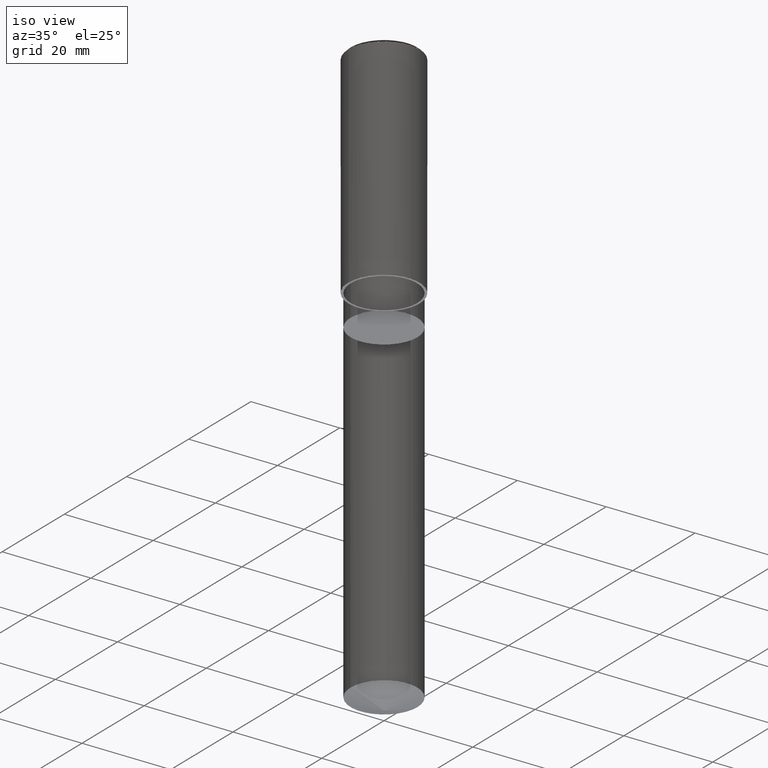
[diagram: clean part render]
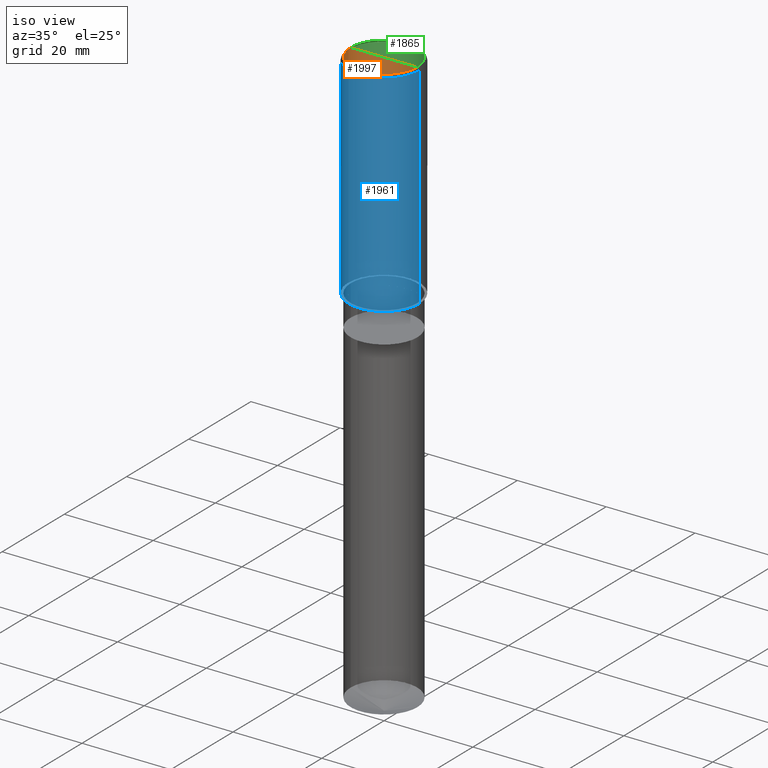
[diagram: same view with three faces highlighted in distinct colors, each labeled with its STEP entity id]
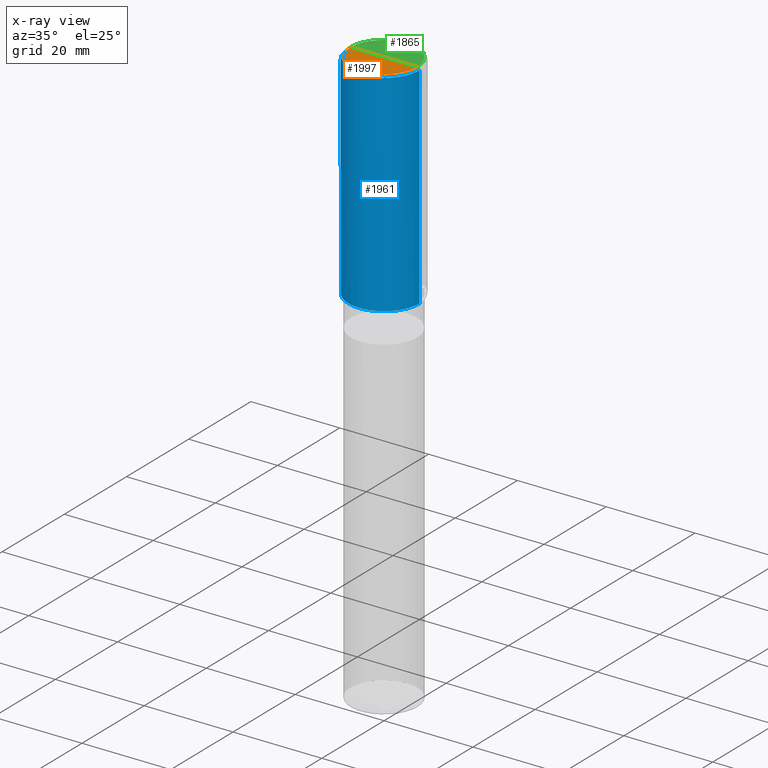
[diagram: x-ray of the same camera — body ghosted, the three highlighted faces saturated]
A machine part, iso view with three faces highlighted in distinct colors.
The next image is the same camera in x-ray (body ghosted, the three faces saturated) — at least one of them is partly hidden behind the body in this view.
Their STEP definitions:

[orange] entity #1997 — the highlighted face is a freeform B-spline surface patch.
#1600=CARTESIAN_POINT('',(7.5,0.0,48.0));
#1604=CARTESIAN_POINT('',(-7.5,0.0,48.0));
#1605=CARTESIAN_POINT('',(0.0,0.0,48.0));
#1618=CARTESIAN_POINT('',(-7.5,-7.5,48.0));
#1619=CARTESIAN_POINT('',(0.0,-7.5,48.0));
#1620=CARTESIAN_POINT('',(7.5,-7.5,48.0));
#1982=(
BOUNDED_SURFACE()
B_SPLINE_SURFACE(1,2,(
(#1604,#1618,#1619,#1620,#1600),
(#1605,#1605,#1605,#1605,#1605)
), .UNSPECIFIED.,.F.,.F.,.F.)
B_SPLINE_SURFACE_WITH_KNOTS((2,2),(3,2,3),(
0.0,1.0),(
0.0,0.5,1.0), .UNSPECIFIED.)
GEOMETRIC_REPRESENTATION_ITEM()
RATIONAL_B_SPLINE_SURFACE(((1.0,0.707106781187,1.0,0.707106781187,1.0),
(1.0,0.707106781187,1.0,0.707106781187,1.0)
))
REPRESENTATION_ITEM('')
SURFACE()
);
#1983=(
BOUNDED_CURVE()
B_SPLINE_CURVE(2,(#1600,#1620,#1619,#1618,#1604),.UNSPECIFIED.,.F.,.F.)
B_SPLINE_CURVE_WITH_KNOTS((3,2,3),
(0.0,0.5,1.0),.UNSPECIFIED.)
CURVE()
GEOMETRIC_REPRESENTATION_ITEM()
RATIONAL_B_SPLINE_CURVE((1.0,0.707106781187,1.0,0.707106781187,1.0))
REPRESENTATION_ITEM('')
);
#1984=(
BOUNDED_CURVE()
B_SPLINE_CURVE(1,(#1604,#1605),.UNSPECIFIED.,.F.,.F.)
B_SPLINE_CURVE_WITH_KNOTS((2,2),
(0.0,1.0),.UNSPECIFIED.)
CURVE()
GEOMETRIC_REPRESENTATION_ITEM()
RATIONAL_B_SPLINE_CURVE((1.0,1.0))
REPRESENTATION_ITEM('')
);
#1985=(
BOUNDED_CURVE()
B_SPLINE_CURVE(1,(#1605,#1600),.UNSPECIFIED.,.F.,.F.)
B_SPLINE_CURVE_WITH_KNOTS((2,2),
(0.0,1.0),.UNSPECIFIED.)
CURVE()
GEOMETRIC_REPRESENTATION_ITEM()
RATIONAL_B_SPLINE_CURVE((1.0,1.0))
REPRESENTATION_ITEM('')
);
#1986=VERTEX_POINT('',#1600);
#1987=VERTEX_POINT('',#1604);
#1988=VERTEX_POINT('',#1605);
#1989=EDGE_CURVE('',#1986,#1987,#1983,.T.);
#1990=EDGE_CURVE('',#1987,#1988,#1984,.T.);
#1991=EDGE_CURVE('',#1988,#1986,#1985,.T.);
#1992=ORIENTED_EDGE('',*,*,#1989,.T.);
#1993=ORIENTED_EDGE('',*,*,#1990,.T.);
#1994=ORIENTED_EDGE('',*,*,#1991,.T.);
#1995=EDGE_LOOP('',(#1992,#1993,#1994));
#1996=FACE_OUTER_BOUND('',#1995,.T.);
#1997=ADVANCED_FACE('',(#1996),#1982,.T.);

[blue] entity #1961 — the highlighted face is a freeform B-spline surface patch.
#1590=CARTESIAN_POINT('',(8.0,0.0,0.0));
#1594=CARTESIAN_POINT('',(-8.0,0.0,0.0));
#1595=CARTESIAN_POINT('',(8.0,0.0,47.5));
#1599=CARTESIAN_POINT('',(-8.0,0.0,47.5));
#1612=CARTESIAN_POINT('',(-8.0,-8.0,0.0));
#1613=CARTESIAN_POINT('',(0.0,-8.0,0.0));
#1614=CARTESIAN_POINT('',(8.0,-8.0,0.0));
#1615=CARTESIAN_POINT('',(-8.0,-8.0,47.5));
#1616=CARTESIAN_POINT('',(0.0,-8.0,47.5));
#1617=CARTESIAN_POINT('',(8.0,-8.0,47.5));
#1942=(
BOUNDED_SURFACE()
B_SPLINE_SURFACE(1,2,(
(#1594,#1612,#1613,#1614,#1590),
(#1599,#1615,#1616,#1617,#1595)
), .UNSPECIFIED.,.F.,.F.,.F.)
B_SPLINE_SURFACE_WITH_KNOTS((2,2),(3,2,3),(
0.0,1.0),(
0.0,0.5,1.0), .UNSPECIFIED.)
GEOMETRIC_REPRESENTATION_ITEM()
RATIONAL_B_SPLINE_SURFACE(((1.0,0.707106781187,1.0,0.707106781187,1.0),
(1.0,0.707106781187,1.0,0.707106781187,1.0)
))
REPRESENTATION_ITEM('')
SURFACE()
);
#1943=(
BOUNDED_CURVE()
B_SPLINE_CURVE(2,(#1590,#1614,#1613,#1612,#1594),.UNSPECIFIED.,.F.,.F.)
B_SPLINE_CURVE_WITH_KNOTS((3,2,3),
(0.0,0.5,1.0),.UNSPECIFIED.)
CURVE()
GEOMETRIC_REPRESENTATION_ITEM()
RATIONAL_B_SPLINE_CURVE((1.0,0.707106781187,1.0,0.707106781187,1.0))
REPRESENTATION_ITEM('')
);
#1944=(
BOUNDED_CURVE()
B_SPLINE_CURVE(1,(#1594,#1599),.UNSPECIFIED.,.F.,.F.)
B_SPLINE_CURVE_WITH_KNOTS((2,2),
(0.0,1.0),.UNSPECIFIED.)
CURVE()
GEOMETRIC_REPRESENTATION_ITEM()
RATIONAL_B_SPLINE_CURVE((1.0,1.0))
REPRESENTATION_ITEM('')
);
#1945=(
BOUNDED_CURVE()
B_SPLINE_CURVE(2,(#1599,#1615,#1616,#1617,#1595),.UNSPECIFIED.,.F.,.F.)
B_SPLINE_CURVE_WITH_KNOTS((3,2,3),
(0.0,0.5,1.0),.UNSPECIFIED.)
CURVE()
GEOMETRIC_REPRESENTATION_ITEM()
RATIONAL_B_SPLINE_CURVE((1.0,0.707106781187,1.0,0.707106781187,1.0))
REPRESENTATION_ITEM('')
);
#1946=(
BOUNDED_CURVE()
B_SPLINE_CURVE(1,(#1595,#1590),.UNSPECIFIED.,.F.,.F.)
B_SPLINE_CURVE_WITH_KNOTS((2,2),
(0.0,1.0),.UNSPECIFIED.)
CURVE()
GEOMETRIC_REPRESENTATION_ITEM()
RATIONAL_B_SPLINE_CURVE((1.0,1.0))
REPRESENTATION_ITEM('')
);
#1947=VERTEX_POINT('',#1590);
#1948=VERTEX_POINT('',#1594);
#1949=VERTEX_POINT('',#1595);
#1950=VERTEX_POINT('',#1599);
#1951=EDGE_CURVE('',#1947,#1948,#1943,.T.);
#1952=EDGE_CURVE('',#1948,#1950,#1944,.T.);
#1953=EDGE_CURVE('',#1950,#1949,#1945,.T.);
#1954=EDGE_CURVE('',#1949,#1947,#1946,.T.);
#1955=ORIENTED_EDGE('',*,*,#1951,.T.);
#1956=ORIENTED_EDGE('',*,*,#1952,.T.);
#1957=ORIENTED_EDGE('',*,*,#1953,.T.);
#1958=ORIENTED_EDGE('',*,*,#1954,.T.);
#1959=EDGE_LOOP('',(#1955,#1956,#1957,#1958));
#1960=FACE_OUTER_BOUND('',#1959,.T.);
#1961=ADVANCED_FACE('',(#1960),#1942,.T.);

[green] entity #1865 — the highlighted face is a freeform B-spline surface patch.
#1600=CARTESIAN_POINT('',(7.5,0.0,48.0));
#1601=CARTESIAN_POINT('',(7.5,7.5,48.0));
#1602=CARTESIAN_POINT('',(0.0,7.5,48.0));
#1603=CARTESIAN_POINT('',(-7.5,7.5,48.0));
#1604=CARTESIAN_POINT('',(-7.5,0.0,48.0));
#1605=CARTESIAN_POINT('',(0.0,0.0,48.0));
#1850=(
BOUNDED_SURFACE()
B_SPLINE_SURFACE(1,2,(
(#1600,#1601,#1602,#1603,#1604),
(#1605,#1605,#1605,#1605,#1605)
), .UNSPECIFIED.,.F.,.F.,.F.)
B_SPLINE_SURFACE_WITH_KNOTS((2,2),(3,2,3),(
0.0,1.0),(
0.0,0.5,1.0), .UNSPECIFIED.)
GEOMETRIC_REPRESENTATION_ITEM()
RATIONAL_B_SPLINE_SURFACE(((1.0,0.707106781187,1.0,0.707106781187,1.0),
(1.0,0.707106781187,1.0,0.707106781187,1.0)
))
REPRESENTATION_ITEM('')
SURFACE()
);
#1851=(
BOUNDED_CURVE()
B_SPLINE_CURVE(2,(#1604,#1603,#1602,#1601,#1600),.UNSPECIFIED.,.F.,.F.)
B_SPLINE_CURVE_WITH_KNOTS((3,2,3),
(0.0,0.5,1.0),.UNSPECIFIED.)
CURVE()
GEOMETRIC_REPRESENTATION_ITEM()
RATIONAL_B_SPLINE_CURVE((1.0,0.707106781187,1.0,0.707106781187,1.0))
REPRESENTATION_ITEM('')
);
#1852=(
BOUNDED_CURVE()
B_SPLINE_CURVE(1,(#1600,#1605),.UNSPECIFIED.,.F.,.F.)
B_SPLINE_CURVE_WITH_KNOTS((2,2),
(0.0,1.0),.UNSPECIFIED.)
CURVE()
GEOMETRIC_REPRESENTATION_ITEM()
RATIONAL_B_SPLINE_CURVE((1.0,1.0))
REPRESENTATION_ITEM('')
);
#1853=(
BOUNDED_CURVE()
B_SPLINE_CURVE(1,(#1605,#1604),.UNSPECIFIED.,.F.,.F.)
B_SPLINE_CURVE_WITH_KNOTS((2,2),
(0.0,1.0),.UNSPECIFIED.)
CURVE()
GEOMETRIC_REPRESENTATION_ITEM()
RATIONAL_B_SPLINE_CURVE((1.0,1.0))
REPRESENTATION_ITEM('')
);
#1854=VERTEX_POINT('',#1600);
#1855=VERTEX_POINT('',#1604);
#1856=VERTEX_POINT('',#1605);
#1857=EDGE_CURVE('',#1855,#1854,#1851,.T.);
#1858=EDGE_CURVE('',#1854,#1856,#1852,.T.);
#1859=EDGE_CURVE('',#1856,#1855,#1853,.T.);
#1860=ORIENTED_EDGE('',*,*,#1857,.T.);
#1861=ORIENTED_EDGE('',*,*,#1858,.T.);
#1862=ORIENTED_EDGE('',*,*,#1859,.T.);
#1863=EDGE_LOOP('',(#1860,#1861,#1862));
#1864=FACE_OUTER_BOUND('',#1863,.T.);
#1865=ADVANCED_FACE('',(#1864),#1850,.T.);